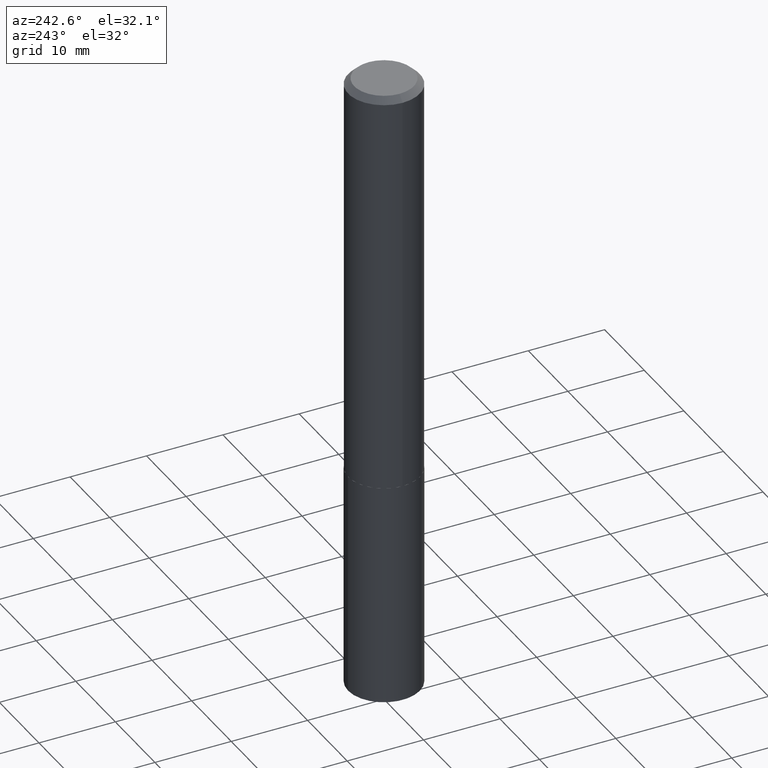
[diagram: clean part render]
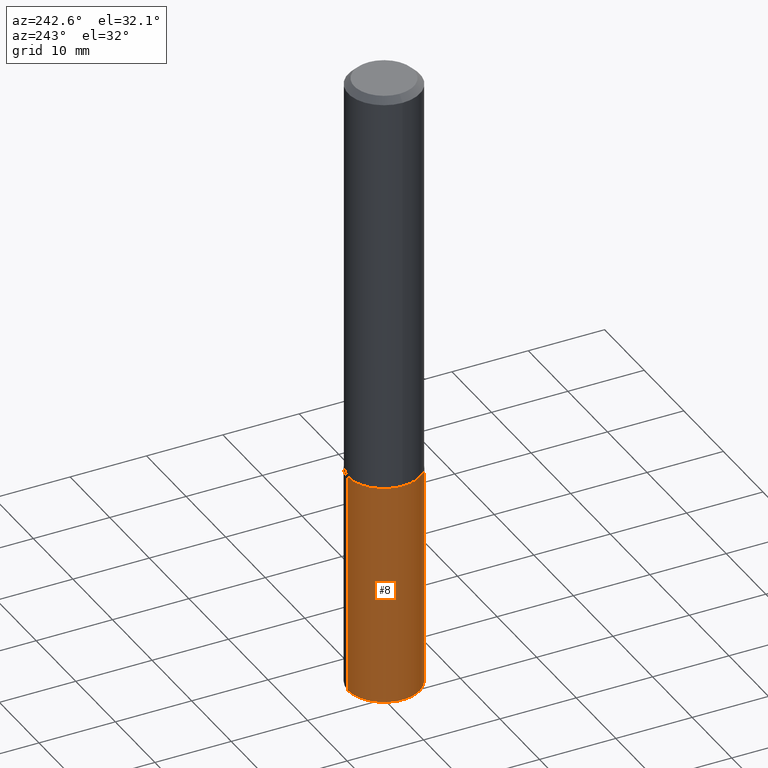
[diagram: same view with one face highlighted and labeled with its STEP entity id]
A machine part, auxiliary view. The second image highlights one B-rep face of the part: STEP entity #8.
In plain terms, the highlighted cylindrical surface (partial cylindrical patch) has radius 4.7003 mm, axis along (-0, 0, 1).
Its self-contained STEP definition (entity closure, byte-faithful):
#8 = ADVANCED_FACE ( 'NONE', ( #322 ), #260, .T. ) ;
#9 = ORIENTED_EDGE ( 'NONE', *, *, #159, .T. ) ;
#10 = AXIS2_PLACEMENT_3D ( 'NONE', #126, #160, #345 ) ;
#12 = CARTESIAN_POINT ( 'NONE',  ( -1.292197243505792011E-15, -0.1850500000000073197, -2.102399999999999824 ) ) ;
#18 = LINE ( 'NONE', #12, #282 ) ;
#49 = LINE ( 'NONE', #132, #353 ) ;
#50 = DIRECTION ( 'NONE',  ( -6.982962677686265133E-15, -1.000000000000000000, 2.952551195530141356E-15 ) ) ;
#52 = EDGE_CURVE ( 'NONE', #149, #306, #18, .T. ) ;
#70 = ORIENTED_EDGE ( 'NONE', *, *, #327, .F. ) ;
#85 = AXIS2_PLACEMENT_3D ( 'NONE', #103, #104, #50 ) ;
#99 = AXIS2_PLACEMENT_3D ( 'NONE', #137, #356, #264 ) ;
#103 = CARTESIAN_POINT ( 'NONE',  ( 7.966223129250220478E-29, -1.137345700306574597E-14, -3.257516001940621742 ) ) ;
#104 = DIRECTION ( 'NONE',  ( -2.445528852843129027E-29, 3.491395348611256863E-15, 1.000000000000000000 ) ) ;
#120 = EDGE_LOOP ( 'NONE', ( #70, #9, #280, #187 ) ) ;
#126 = CARTESIAN_POINT ( 'NONE',  ( 5.141353618123632749E-29, -7.340490366783830084E-15, -2.102400000000000713 ) ) ;
#132 = CARTESIAN_POINT ( 'NONE',  ( 1.314859332524116418E-15, 0.1850499999999926370, -2.102400000000001157 ) ) ;
#135 = CARTESIAN_POINT ( 'NONE',  ( -1.292197243505792011E-15, -0.1850500000000073197, -2.102399999999999824 ) ) ;
#137 = CARTESIAN_POINT ( 'NONE',  ( 5.141353618123632749E-29, -7.340490366783830084E-15, -2.102400000000000713 ) ) ;
#149 = VERTEX_POINT ( 'NONE', #281 ) ;
#151 = VERTEX_POINT ( 'NONE', #375 ) ;
#159 = EDGE_CURVE ( 'NONE', #381, #149, #364, .T. ) ;
#160 = DIRECTION ( 'NONE',  ( -2.445528852843129027E-29, 3.491395348611256863E-15, 1.000000000000000000 ) ) ;
#187 = ORIENTED_EDGE ( 'NONE', *, *, #273, .F. ) ;
#219 = DIRECTION ( 'NONE',  ( -2.445528852843129027E-29, 3.491395348611256863E-15, 1.000000000000000000 ) ) ;
#260 = CYLINDRICAL_SURFACE ( 'NONE', #10, 0.1850499999999999923 ) ;
#264 = DIRECTION ( 'NONE',  ( -6.982962677686265133E-15, -1.000000000000000000, 2.952551195530141356E-15 ) ) ;
#273 = EDGE_CURVE ( 'NONE', #151, #306, #290, .T. ) ;
#280 = ORIENTED_EDGE ( 'NONE', *, *, #52, .T. ) ;
#281 = CARTESIAN_POINT ( 'NONE',  ( -1.292197243505763612E-15, -0.1850500000000113165, -3.257516001940621297 ) ) ;
#282 = VECTOR ( 'NONE', #372, 39.37007874015748143 ) ;
#290 = CIRCLE ( 'NONE', #99, 0.1850499999999999923 ) ;
#293 = CARTESIAN_POINT ( 'NONE',  ( 1.314859332524144620E-15, 0.1850499999999885847, -3.257516001940622186 ) ) ;
#306 = VERTEX_POINT ( 'NONE', #135 ) ;
#322 = FACE_OUTER_BOUND ( 'NONE', #120, .T. ) ;
#327 = EDGE_CURVE ( 'NONE', #381, #151, #49, .T. ) ;
#345 = DIRECTION ( 'NONE',  ( -6.982962677686265133E-15, -1.000000000000000000, 2.952551195530141356E-15 ) ) ;
#353 = VECTOR ( 'NONE', #219, 39.37007874015748143 ) ;
#356 = DIRECTION ( 'NONE',  ( -2.445528852843129027E-29, 3.491395348611256863E-15, 1.000000000000000000 ) ) ;
#364 = CIRCLE ( 'NONE', #85, 0.1850499999999999923 ) ;
#372 = DIRECTION ( 'NONE',  ( -2.445528852843129027E-29, 3.491395348611256863E-15, 1.000000000000000000 ) ) ;
#375 = CARTESIAN_POINT ( 'NONE',  ( 1.314859332524144817E-15, 0.1850499999999926370, -2.102400000000001157 ) ) ;
#381 = VERTEX_POINT ( 'NONE', #293 ) ;